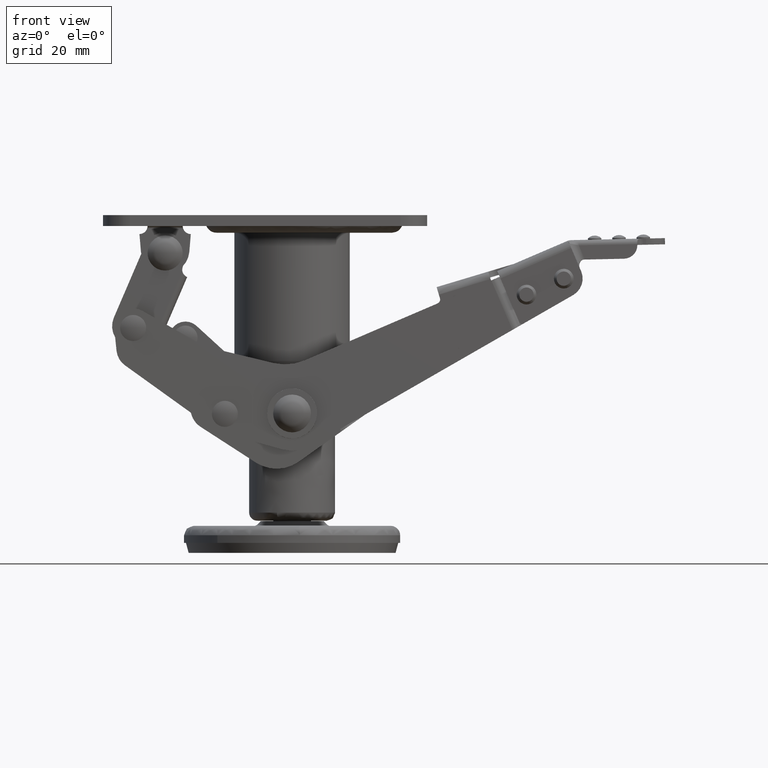
[diagram: clean part render]
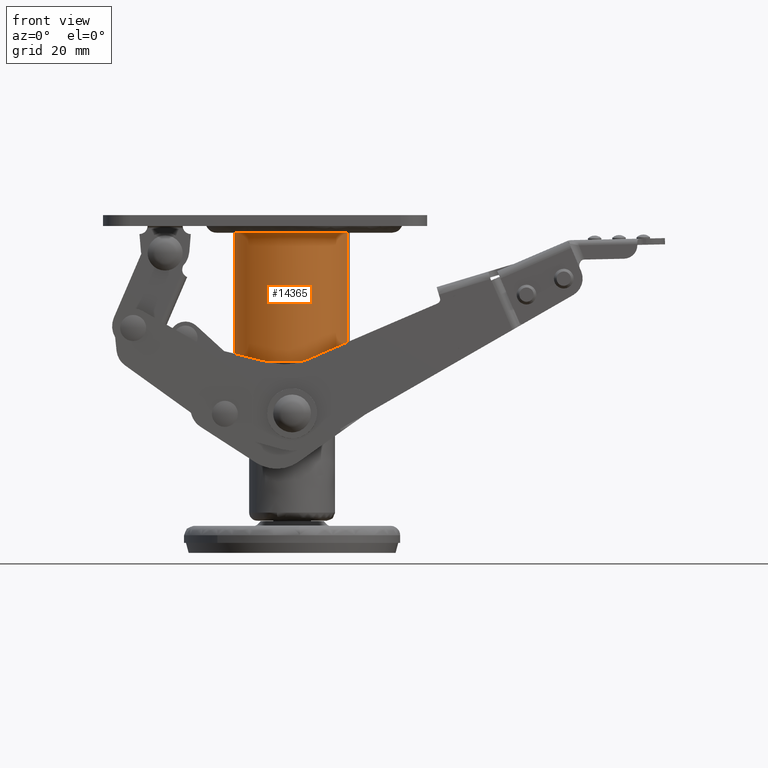
[diagram: same view with one face highlighted and labeled with its STEP entity id]
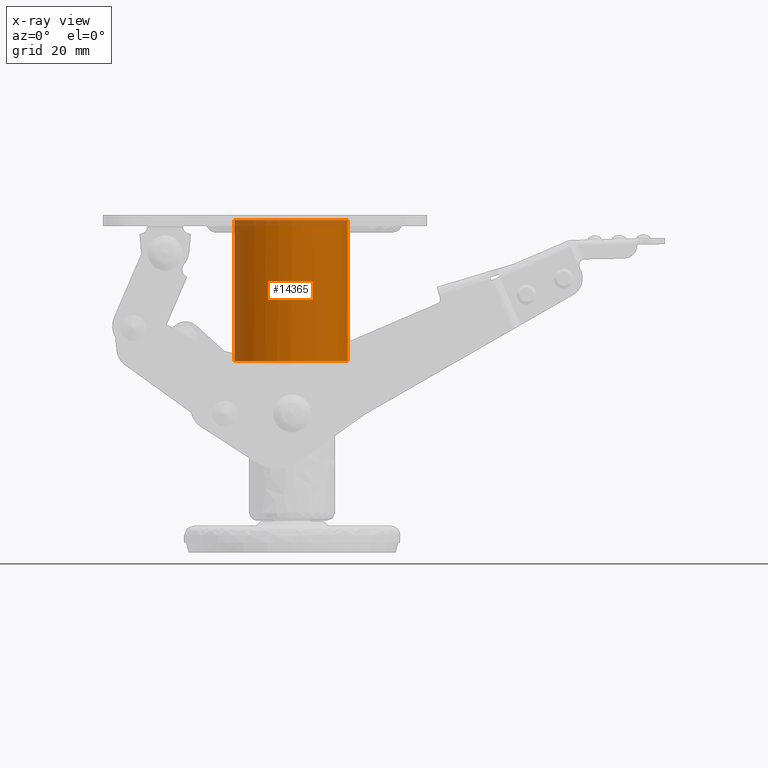
[diagram: x-ray of the same camera — body ghosted, the highlighted face saturated]
A machine part, front view. The second image highlights one B-rep face of the part: STEP entity #14365.
The next image is the same camera in x-ray: the body ghosted, the highlighted face saturated — about 4% of this face is hidden behind the body in this view.
In plain terms, the highlighted face is a freeform B-spline surface patch.
Its self-contained STEP definition (entity closure, byte-faithful):
#14202=CARTESIAN_POINT('',(20.577241104725879,-5.692091418627962,-0.545783380332811));
#14203=CARTESIAN_POINT('',(19.156067133467886,-10.829717873929262,-0.545783380332811));
#14204=CARTESIAN_POINT('',(15.486747173358591,-14.696374321189159,-0.545783380332811));
#14205=CARTESIAN_POINT('',(0.790372852169451,-30.183121494547756,-0.545783380332811));
#14206=CARTESIAN_POINT('',(-14.696374321189140,-15.486747173358610,-0.545783380332811));
#14207=CARTESIAN_POINT('',(-30.183121494547724,-0.790372852169474,-0.545783380332811));
#14208=CARTESIAN_POINT('',(-15.486747173358591,14.696374321189120,-0.545783380332811));
#14209=CARTESIAN_POINT('',(-0.790372852169451,30.183121494547699,-0.545783380332811));
#14210=CARTESIAN_POINT('',(14.696374321189140,15.486747173358570,-0.545783380332811));
#14211=CARTESIAN_POINT('',(20.577241104725879,-5.692091418627962,-55.355486821846384));
#14212=CARTESIAN_POINT('',(19.156067133467886,-10.829717873929262,-55.355486821846377));
#14213=CARTESIAN_POINT('',(15.486747173358591,-14.696374321189159,-55.355486821846377));
#14214=CARTESIAN_POINT('',(0.790372852169451,-30.183121494547756,-55.355486821846377));
#14215=CARTESIAN_POINT('',(-14.696374321189140,-15.486747173358610,-55.355486821846377));
#14216=CARTESIAN_POINT('',(-30.183121494547724,-0.790372852169474,-55.355486821846377));
#14217=CARTESIAN_POINT('',(-15.486747173358591,14.696374321189120,-55.355486821846377));
#14218=CARTESIAN_POINT('',(-0.790372852169451,30.183121494547699,-55.355486821846377));
#14219=CARTESIAN_POINT('',(14.696374321189140,15.486747173358570,-55.355486821846377));
#14227=(BOUNDED_SURFACE()B_SPLINE_SURFACE(2,1,((#14202,#14211),(#14203,#14212),(#14204,#14213),(#14205,#14214),(#14206,#14215),(#14207,#14216),(#14208,#14217),(#14209,#14218),(#14210,#14219)),.UNSPECIFIED.,.F.,.F.,.U.)B_SPLINE_SURFACE_WITH_KNOTS((3,2,2,2,3),(2,2),(0.0,11.319631413692120,46.693479581480013,82.067327749267903,117.441175917055800),(0.0,54.809703441513577),.UNSPECIFIED.)GEOMETRIC_REPRESENTATION_ITEM()RATIONAL_B_SPLINE_SURFACE(((0.872532871172385,0.872532871172385),(0.906274169979695,0.906274169979695),(1.0,1.0),(0.707106781186548,0.707106781186548),(1.0,1.0),(0.707106781186548,0.707106781186548),(1.0,1.0),(0.707106781186548,0.707106781186548),(1.0,1.0)))REPRESENTATION_ITEM('')SURFACE());
#14228=CARTESIAN_POINT('',(20.577240930999110,-5.692091280674314,-1.850000000000001));
#14229=VERTEX_POINT('',#14228);
#14230=CARTESIAN_POINT('',(-0.000001589504241,-21.350006000000018,-1.850000000000000));
#14231=VERTEX_POINT('',#14230);
#14232=CARTESIAN_POINT('',(20.577240930999110,-5.692091280674314,-1.850000000000001));
#14233=CARTESIAN_POINT('',(20.057274319034271,-7.574601139697176,-1.849999999999998));
#14234=CARTESIAN_POINT('',(18.755280407856151,-10.591081899974521,-1.850000000000003));
#14235=CARTESIAN_POINT('',(16.124321560102040,-14.156039340052921,-1.850000000000004));
#14236=CARTESIAN_POINT('',(13.237518486280520,-16.912334340392569,-1.849999999999998));
#14237=CARTESIAN_POINT('',(9.939524794438606,-19.046149952253330,-1.850000000000009));
#14238=CARTESIAN_POINT('',(6.637254889165860,-20.369144037778341,-1.849999999999991));
#14239=CARTESIAN_POINT('',(3.399455101923993,-21.157501121777791,-1.850000000000017));
#14240=CARTESIAN_POINT('',(1.301945805639719,-21.350149857968439,-1.850000000000009));
#14241=CARTESIAN_POINT('',(-0.000001589504241,-21.350006000000018,-1.850000000000000));
#14242=B_SPLINE_CURVE_WITH_KNOTS('',3,(#14232,#14233,#14234,#14235,#14236,#14237,#14238,#14239,#14240,#14241),.UNSPECIFIED.,.F.,.U.,(4,1,1,1,1,1,1,4),(0.000000106949503,5.858758104327656,9.764598875665424,13.236516278207850,17.793251192123609,21.482121345969752,23.869032110012519,27.774855497409341),.UNSPECIFIED.);
#14243=EDGE_CURVE('',#14229,#14231,#14242,.T.);
#14244=ORIENTED_EDGE('',*,*,#14243,.T.);
#14245=CARTESIAN_POINT('',(-21.350006000000050,-2.340590E-014,-1.850000000000000));
#14246=VERTEX_POINT('',#14245);
#14247=CARTESIAN_POINT('',(-0.000001589504241,-21.350006000000018,-1.850000000000000));
#14248=CARTESIAN_POINT('',(-1.484702297507871,-21.350228365275932,-1.850000000000003));
#14249=CARTESIAN_POINT('',(-4.454016664012010,-21.039061271857921,-1.849999999999998));
#14250=CARTESIAN_POINT('',(-8.213580507153875,-19.822664775088871,-1.850000000000003));
#14251=CARTESIAN_POINT('',(-11.466452706083009,-18.109375631759050,-1.849999999999994));
#14252=CARTESIAN_POINT('',(-14.071511744153250,-16.177388006691260,-1.850000000000015));
#14253=CARTESIAN_POINT('',(-16.334286943308278,-13.858243161236510,-1.849999999999977));
#14254=CARTESIAN_POINT('',(-18.402925307782620,-11.033283454375150,-1.850000000000040));
#14255=CARTESIAN_POINT('',(-19.923816892043739,-7.964955054902046,-1.849999999999994));
#14256=CARTESIAN_POINT('',(-21.068963117138392,-4.104609360363853,-1.849999999999979));
#14257=CARTESIAN_POINT('',(-21.350269052703730,-1.572046426597958,-1.850000000000011));
#14258=CARTESIAN_POINT('',(-21.350006000000050,-2.340590E-014,-1.850000000000000));
#14259=B_SPLINE_CURVE_WITH_KNOTS('',3,(#14247,#14248,#14249,#14250,#14251,#14252,#14253,#14254,#14255,#14256,#14257,#14258),.UNSPECIFIED.,.F.,.U.,(4,1,1,1,1,1,1,1,1,4),(0.000000057178859,4.454087110029363,8.908195559269934,11.790254409035880,15.458380728923380,18.602338808157089,21.484459197735902,25.938563034968588,28.820621622593428,33.536720533344891),.UNSPECIFIED.);
#14260=EDGE_CURVE('',#14231,#14246,#14259,.T.);
#14261=ORIENTED_EDGE('',*,*,#14260,.T.);
#14262=CARTESIAN_POINT('',(0.000001589504060,21.350005999999969,-1.850000000000000));
#14263=VERTEX_POINT('',#14262);
#14264=CARTESIAN_POINT('',(-21.350006000000050,-2.340590E-014,-1.850000000000000));
#14265=CARTESIAN_POINT('',(-21.350230743223879,1.484702816172113,-1.850000000000001));
#14266=CARTESIAN_POINT('',(-21.039050459537741,4.454004326346319,-1.849999999999999));
#14267=CARTESIAN_POINT('',(-19.714574629521572,8.547807615645336,-1.850000000000006));
#14268=CARTESIAN_POINT('',(-17.747446349942560,12.070233236602920,-1.849999999999992));
#14269=CARTESIAN_POINT('',(-15.467415913110351,14.848323727682210,-1.850000000000010));
#14270=CARTESIAN_POINT('',(-12.777706774025271,17.226699206763229,-1.850000000000011));
#14271=CARTESIAN_POINT('',(-9.579252607195302,19.224893586011660,-1.849999999999970));
#14272=CARTESIAN_POINT('',(-5.239762006071504,20.898823840777670,-1.850000000000018));
#14273=CARTESIAN_POINT('',(-1.921426879836054,21.350668237988359,-1.849999999999995));
#14274=CARTESIAN_POINT('',(0.000001589504060,21.350005999999969,-1.850000000000000));
#14275=B_SPLINE_CURVE_WITH_KNOTS('',3,(#14264,#14265,#14266,#14267,#14268,#14269,#14270,#14271,#14272,#14273,#14274),.UNSPECIFIED.,.F.,.U.,(4,1,1,1,1,1,1,1,4),(0.000000056606716,4.454087347325352,8.908196034776736,12.838313058717610,16.506367428001852,19.650364365961099,23.580490700594499,27.772621332501391,33.536722325097777),.UNSPECIFIED.);
#14276=EDGE_CURVE('',#14246,#14263,#14275,.T.);
#14277=ORIENTED_EDGE('',*,*,#14276,.T.);
#14278=CARTESIAN_POINT('',(14.696374685476551,15.486747374733911,-1.850000000000001));
#14279=VERTEX_POINT('',#14278);
#14280=CARTESIAN_POINT('',(0.000001589504060,21.350005999999969,-1.850000000000000));
#14281=CARTESIAN_POINT('',(1.941814019445434,21.350626546837820,-1.850000000000000));
#14282=CARTESIAN_POINT('',(5.065110282099375,20.920876903746290,-1.849999999999999));
#14283=CARTESIAN_POINT('',(8.797146082327654,19.533277847821150,-1.850000000000003));
#14284=CARTESIAN_POINT('',(11.843068927701591,17.876294109389910,-1.850000000000001));
#14285=CARTESIAN_POINT('',(13.655451105482030,16.474842771406490,-1.850000000000002));
#14286=CARTESIAN_POINT('',(14.696374685476551,15.486747374733911,-1.850000000000001));
#14287=B_SPLINE_CURVE_WITH_KNOTS('',3,(#14280,#14281,#14282,#14283,#14284,#14285,#14286),.UNSPECIFIED.,.F.,.U.,(4,1,1,1,4),(0.000000026523344,5.825266313518046,9.371033956960769,11.903780724831400,16.209407377008741),.UNSPECIFIED.);
#14288=EDGE_CURVE('',#14263,#14279,#14287,.T.);
#14289=ORIENTED_EDGE('',*,*,#14288,.T.);
#14290=CARTESIAN_POINT('',(14.696374416966410,15.486747082469330,-54.018664786477842));
#14291=VERTEX_POINT('',#14290);
#14292=CARTESIAN_POINT('',(14.696374685476551,15.486747374733911,-1.850000000000001));
#14293=CARTESIAN_POINT('',(14.696374416966410,15.486747082469330,-54.018664786477842));
#14294=QUASI_UNIFORM_CURVE('',1,(#14292,#14293),.UNSPECIFIED.,.F.,.U.);
#14295=EDGE_CURVE('',#14279,#14291,#14294,.T.);
#14296=ORIENTED_EDGE('',*,*,#14295,.T.);
#14297=CARTESIAN_POINT('',(-13.096950934456929,16.860979580690572,-54.018664786687509));
#14298=VERTEX_POINT('',#14297);
#14299=CARTESIAN_POINT('',(14.696374416966410,15.486747082469330,-54.018664786477842));
#14300=CARTESIAN_POINT('',(13.208319957086379,16.900128739096662,-54.018664786482709));
#14301=CARTESIAN_POINT('',(10.732363331466781,18.647466475963899,-54.018664786493460));
#14302=CARTESIAN_POINT('',(6.877684751576681,20.296612343358031,-54.018664786515671));
#14303=CARTESIAN_POINT('',(4.041643792202166,21.034646712188060,-54.018664786533989));
#14304=CARTESIAN_POINT('',(0.900804114113276,21.400488220278550,-54.018664786557132));
#14305=CARTESIAN_POINT('',(-1.870552749950984,21.337582184223169,-54.018664786578661));
#14306=CARTESIAN_POINT('',(-5.069577362798251,20.816972895999811,-54.018664786606109));
#14307=CARTESIAN_POINT('',(-8.848263869792573,19.625542663882879,-54.018664786641182));
#14308=CARTESIAN_POINT('',(-11.601255493196630,18.023530058307362,-54.018664786670193));
#14309=CARTESIAN_POINT('',(-13.096950934456929,16.860979580690572,-54.018664786687509));
#14310=B_SPLINE_CURVE_WITH_KNOTS('',3,(#14299,#14300,#14301,#14302,#14303,#14304,#14305,#14306,#14307,#14308,#14309),.UNSPECIFIED.,.F.,.U.,(4,1,1,1,1,1,1,1,4),(0.000000107296731,6.156555031046935,8.998048944943946,12.549959792728730,14.917852171249860,18.469662047211148,20.837565215068349,24.626252612023979,30.309211851344781),.UNSPECIFIED.);
#14311=EDGE_CURVE('',#14291,#14298,#14310,.T.);
#14312=ORIENTED_EDGE('',*,*,#14311,.T.);
#14313=CARTESIAN_POINT('',(-21.350006000000050,-2.340590E-014,-54.018664786500302));
#14314=VERTEX_POINT('',#14313);
#14315=CARTESIAN_POINT('',(-13.096950934456929,16.860979580690572,-54.018664786687509));
#14316=CARTESIAN_POINT('',(-14.136379723463961,16.053790514221010,-54.018664786664047));
#14317=CARTESIAN_POINT('',(-15.879627671376390,14.420039475012491,-54.018664786624292));
#14318=CARTESIAN_POINT('',(-17.909121776014381,11.754749199946829,-54.018664786578199));
#14319=CARTESIAN_POINT('',(-19.539465523670710,8.830136248567516,-54.018664786541649));
#14320=CARTESIAN_POINT('',(-20.945690426141379,4.960215077094201,-54.018664786509319));
#14321=CARTESIAN_POINT('',(-21.350554622009529,1.822250524884291,-54.018664786500352));
#14322=CARTESIAN_POINT('',(-21.350006000000050,-2.340590E-014,-54.018664786500302));
#14323=B_SPLINE_CURVE_WITH_KNOTS('',3,(#14315,#14316,#14317,#14318,#14319,#14320,#14321,#14322),.UNSPECIFIED.,.F.,.U.,(4,1,1,1,1,4),(0.000000053658326,3.948095315507150,7.136974428070444,10.022087515976050,13.970201273005010,19.436809236038449),.UNSPECIFIED.);
#14324=EDGE_CURVE('',#14298,#14314,#14323,.T.);
#14325=ORIENTED_EDGE('',*,*,#14324,.T.);
#14326=CARTESIAN_POINT('',(-17.582425900559929,-12.111195467473770,-54.018664786687253));
#14327=VERTEX_POINT('',#14326);
#14328=CARTESIAN_POINT('',(-21.350006000000050,-2.340590E-014,-54.018664786500302));
#14329=CARTESIAN_POINT('',(-21.350381598126731,-1.676872679399859,-54.018664786500409));
#14330=CARTESIAN_POINT('',(-21.040140946580500,-4.292498725029114,-54.018664786515387));
#14331=CARTESIAN_POINT('',(-19.762255908371621,-8.400400651355554,-54.018664786579457));
#14332=CARTESIAN_POINT('',(-18.533989935404239,-10.730464558614390,-54.018664786639611));
#14333=CARTESIAN_POINT('',(-17.582425900559929,-12.111195467473770,-54.018664786687253));
#14334=B_SPLINE_CURVE_WITH_KNOTS('',3,(#14328,#14329,#14330,#14331,#14332,#14333),.UNSPECIFIED.,.F.,.U.,(4,1,1,4),(0.000000026995245,5.030498143066009,7.847569769905244,12.878067885976220),.UNSPECIFIED.);
#14335=EDGE_CURVE('',#14314,#14327,#14334,.T.);
#14336=ORIENTED_EDGE('',*,*,#14335,.T.);
#14337=CARTESIAN_POINT('',(20.577241123880249,-5.692091349383788,-54.018664786478588));
#14338=VERTEX_POINT('',#14337);
#14339=CARTESIAN_POINT('',(-17.582425900559929,-12.111195467473770,-54.018664786687253));
#14340=CARTESIAN_POINT('',(-16.509659004548752,-13.669627821941830,-54.018664786673241));
#14341=CARTESIAN_POINT('',(-14.415872149376019,-15.979256888318769,-54.018664786649509));
#14342=CARTESIAN_POINT('',(-11.010276147180990,-18.397823910224719,-54.018664786616753));
#14343=CARTESIAN_POINT('',(-7.550218093898561,-20.104172220417251,-54.018664786587607));
#14344=CARTESIAN_POINT('',(-4.249804396685617,-21.024564187374281,-54.018664786561892));
#14345=CARTESIAN_POINT('',(-0.608203241020853,-21.419445707479149,-54.018664786537677));
#14346=CARTESIAN_POINT('',(2.619622010728415,-21.296266291612319,-54.018664786518968));
#14347=CARTESIAN_POINT('',(6.393233777202762,-20.488101320798791,-54.018664786497823));
#14348=CARTESIAN_POINT('',(9.618937677283359,-19.169035710501699,-54.018664786484599));
#14349=CARTESIAN_POINT('',(12.524702088931161,-17.378736808981291,-54.018664786473863));
#14350=CARTESIAN_POINT('',(15.296225910867729,-15.073459435536980,-54.018664786469017));
#14351=CARTESIAN_POINT('',(17.438838846369219,-12.481490141036470,-54.018664786465052));
#14352=CARTESIAN_POINT('',(19.358056823821791,-9.215218922337536,-54.018664786471263));
#14353=CARTESIAN_POINT('',(20.173958309533582,-7.150937273465731,-54.018664786474012));
#14354=CARTESIAN_POINT('',(20.577241123880249,-5.692091349383788,-54.018664786478588));
#14355=B_SPLINE_CURVE_WITH_KNOTS('',3,(#14339,#14340,#14341,#14342,#14343,#14344,#14345,#14346,#14347,#14348,#14349,#14350,#14351,#14352,#14353,#14354),.UNSPECIFIED.,.F.,.U.,(4,1,1,1,1,1,1,1,1,1,1,1,1,4),(0.000000313870963,5.675722335194436,9.270436438101129,12.486738211662489,17.216599761819701,19.486889587401510,23.459946790520451,26.865388709427300,31.027603071463190,33.865507330476433,37.081816721233402,41.811692220209721,43.892768747531782,48.433383729038930),.UNSPECIFIED.);
#14356=EDGE_CURVE('',#14327,#14338,#14355,.T.);
#14357=ORIENTED_EDGE('',*,*,#14356,.T.);
#14358=CARTESIAN_POINT('',(20.577240930999110,-5.692091280674314,-1.850000000000001));
#14359=CARTESIAN_POINT('',(20.577241123880249,-5.692091349383788,-54.018664786478588));
#14360=QUASI_UNIFORM_CURVE('',1,(#14358,#14359),.UNSPECIFIED.,.F.,.U.);
#14361=EDGE_CURVE('',#14229,#14338,#14360,.T.);
#14362=ORIENTED_EDGE('',*,*,#14361,.F.);
#14363=EDGE_LOOP('',(#14244,#14261,#14277,#14289,#14296,#14312,#14325,#14336,#14357,#14362));
#14364=FACE_OUTER_BOUND('',#14363,.T.);
#14365=ADVANCED_FACE('',(#14364),#14227,.T.);